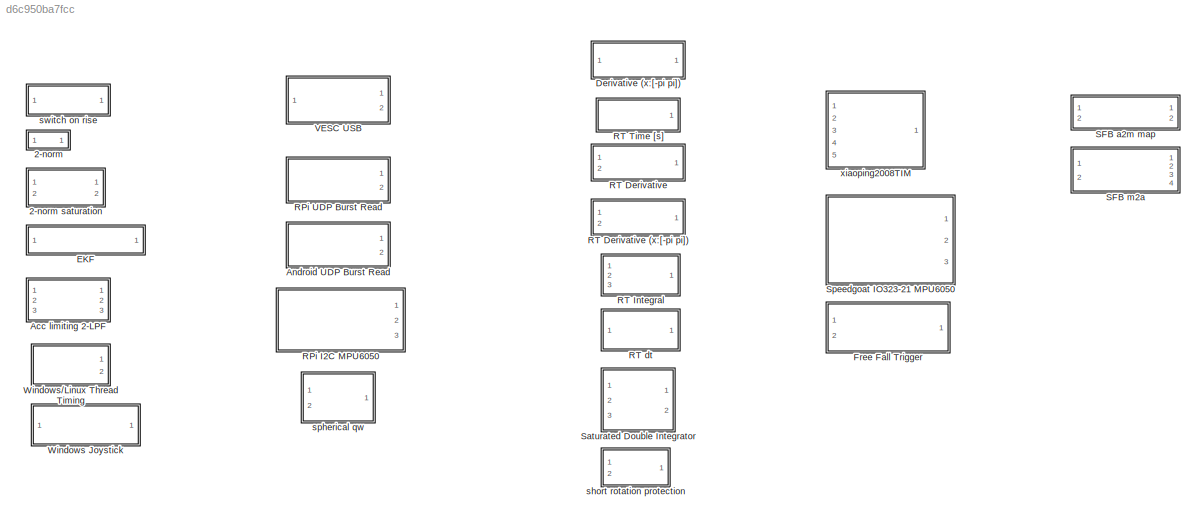
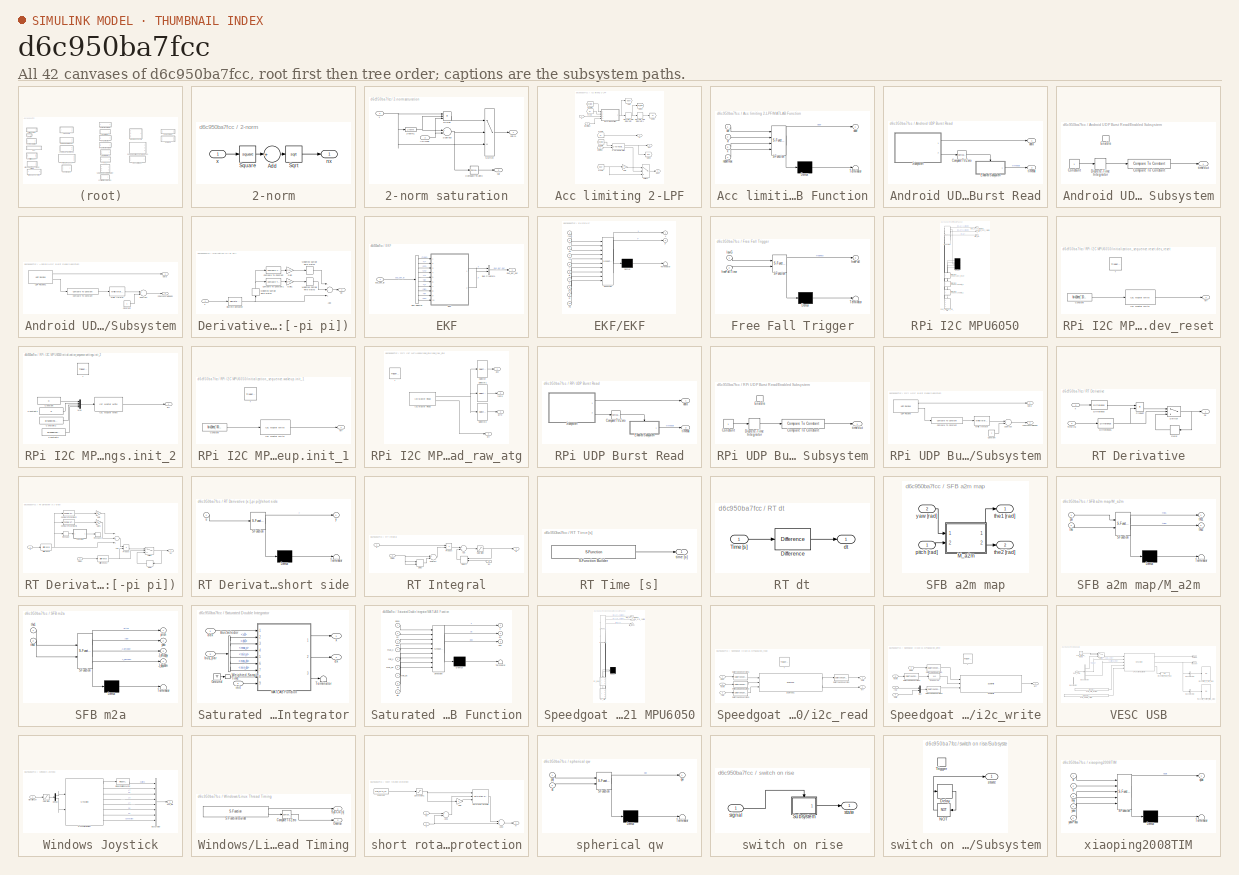
[diagram: thumbnail index - all 42 canvases of the model, root first then tree order]
MODEL slx_d6c950ba7fcc
KIND library
CONFIG AbsTol = auto
CONFIG EnableMultiTasking = off
CONFIG FixedStep = auto
CONFIG MaxStep = auto
CONFIG MinStep = auto
CONFIG RelTol = 1e-3
CONFIG SampleTimeConstraint = Unconstrained
CONFIG Solver = VariableStepAuto
CONFIG SolverName = VariableStepAuto
CONFIG StartTime = 0.0
CONFIG StopTime = 10.0
BLOCK [SubSystem] 2-norm
  Ports = [1, 1]
  RequestExecContextInheritance = off
BLOCK [SubSystem] 2-norm saturation
  Ports = [2, 2]
  RequestExecContextInheritance = off
BLOCK [Reference] 2-norm saturation/2-norm1  REF=$bdroot/2-norm
  Ports = [1, 1]
  SourceBlock = $bdroot/2-norm
  SourceType = Vector 2-norm
BLOCK [Reference] 2-norm saturation/Compare To Zero  REF=simulink/Logic and Bit
Operations/Compare
To Zero
  Ports = [1, 1]
  SourceBlock = simulink/Logic and Bit\nOperations/Compare\nTo Zero
  SourceProductBaseCode = SL
  SourceProductName = Simulink
  SourceType = Compare To Zero
BLOCK [Product] 2-norm saturation/Divide
  InputSameDT = off
  Inputs = */*
  OutDataTypeStr = Inherit: Inherit via internal rule
  Ports = [3, 1]
  RndMeth = Floor
  SaturateOnIntegerOverflow = off
BLOCK [Sum] 2-norm saturation/Subtract
  InputSameDT = off
  Inputs = +-
  OutDataTypeStr = Inherit: Inherit via internal rule
  Ports = [2, 1]
  SaturateOnIntegerOverflow = off
BLOCK [Switch] 2-norm saturation/Switch
  Criteria = u2 > Threshold
  InputSameDT = off
  SaturateOnIntegerOverflow = off
BLOCK [Outport] 2-norm saturation/sat
  IconDisplay = Port number
  Port = 2
BLOCK [Outport] 2-norm saturation/sat(x)
  IconDisplay = Port number
BLOCK [Inport] 2-norm saturation/x
  IconDisplay = Port number
  SignalType = real
  VarSizeSig = No
BLOCK [Inport] 2-norm saturation/||x||max
  IconDisplay = Port number
  Port = 2
  PortDimensions = 1
  SignalType = real
  VarSizeSig = No
BLOCK [Sum] 2-norm/Add
  InputSameDT = off
  Inputs = +
  OutDataTypeStr = Inherit: Inherit via internal rule
  Ports = [1, 1]
  SaturateOnIntegerOverflow = off
BLOCK [Sqrt] 2-norm/Sqrt
BLOCK [Math] 2-norm/Square
  Operator = square
  Ports = [1, 1]
BLOCK [Outport] 2-norm/nx
  IconDisplay = Port number
BLOCK [Inport] 2-norm/x
  IconDisplay = Port number
  SignalType = real
  VarSizeSig = No
BLOCK [SubSystem] Acc limiting 2-LPF
  Ports = [3, 3]
  RequestExecContextInheritance = off
  SystemSampleTime = PAR_SMPLT
  TreatAsAtomicUnit = on
BLOCK [Reference] Acc limiting 2-LPF/2-norm saturation  REF=$bdroot/2-norm saturation
  Ports = [2, 2]
  SourceBlock = $bdroot/2-norm saturation
  SourceType = 2-norm saturation
BLOCK [DiscreteIntegrator] Acc limiting 2-LPF/Discrete-Time Integrator
  ICPrevOutput = DiscIntNeverNeededParam
  ICPrevScaledInput = DiscIntNeverNeededParam
  InitialConditionSetting = Auto
  Ports = [1, 1]
  SampleTime = -1
BLOCK [DiscreteIntegrator] Acc limiting 2-LPF/Discrete-Time Integrator1
  ICPrevOutput = DiscIntNeverNeededParam
  ICPrevScaledInput = DiscIntNeverNeededParam
  InitialConditionSetting = Auto
  Ports = [1, 1]
  SampleTime = -1
BLOCK [From] Acc limiting 2-LPF/From
  GotoTag = xf
BLOCK [From] Acc limiting 2-LPF/From2
  GotoTag = xf
BLOCK [From] Acc limiting 2-LPF/From3
  GotoTag = ddxf
BLOCK [From] Acc limiting 2-LPF/From4
  GotoTag = dxf_raw
BLOCK [From] Acc limiting 2-LPF/From5
  GotoTag = dxf_raw
BLOCK [Gain] Acc limiting 2-LPF/Gain
  Gain = 0
  OutDataTypeStr = Inherit: Inherit via internal rule
  ParamDataTypeStr = Inherit: Inherit via internal rule
  SaturateOnIntegerOverflow = off
BLOCK [Goto] Acc limiting 2-LPF/Goto
  GotoTag = ddxf
BLOCK [Goto] Acc limiting 2-LPF/Goto1
  GotoTag = dxf_raw
BLOCK [Goto] Acc limiting 2-LPF/Goto2
  GotoTag = xf
BLOCK [Goto] Acc limiting 2-LPF/Goto3
  GotoTag = dxf
BLOCK [SubSystem] Acc limiting 2-LPF/MATLAB Function
  ErrorFcn = Stateflow.Translate.translate
  PermitHierarchicalResolution = ExplicitOnly
  Ports = [4, 1]
  RequestExecContextInheritance = off
  SFBlockType = MATLAB Function
BLOCK [Demux] Acc limiting 2-LPF/MATLAB Function/ Demux 
  Outputs = 1
  Ports = [1, 1]
BLOCK [S-Function] Acc limiting 2-LPF/MATLAB Function/ SFunction 
  EnableBusSupport = on
  FunctionName = sf_sfun
  PortCounts = [4 2]
  Ports = [4, 2]
  SFcnIsStateOwnerBlock = off
  SFunctionDeploymentMode = off
  Tag = Stateflow S-Function cm_custom 2
BLOCK [Terminator] Acc limiting 2-LPF/MATLAB Function/ Terminator 
BLOCK [Outport] Acc limiting 2-LPF/MATLAB Function/ddxf
  IconDisplay = Port number
BLOCK [Inport] Acc limiting 2-LPF/MATLAB Function/dxf
  IconDisplay = Port number
BLOCK [Inport] Acc limiting 2-LPF/MATLAB Function/nddxfmax
  IconDisplay = Port number
  Port = 4
BLOCK [Inport] Acc limiting 2-LPF/MATLAB Function/x
  IconDisplay = Port number
  Port = 3
BLOCK [Inport] Acc limiting 2-LPF/MATLAB Function/xf
  IconDisplay = Port number
  Port = 2
BLOCK [Switch] Acc limiting 2-LPF/Switch1
  Criteria = u2 > Threshold
  InputSameDT = off
  SaturateOnIntegerOverflow = off
BLOCK [Outport] Acc limiting 2-LPF/ddxf
  IconDisplay = Port number
  Port = 3
BLOCK [Outport] Acc limiting 2-LPF/dxf
  IconDisplay = Port number
  Port = 2
BLOCK [Inport] Acc limiting 2-LPF/x
  IconDisplay = Port number
BLOCK [Outport] Acc limiting 2-LPF/xf
  IconDisplay = Port number
BLOCK [Inport] Acc limiting 2-LPF/||ddxf||max
  IconDisplay = Port number
  Port = 3
BLOCK [Inport] Acc limiting 2-LPF/||dxf||max
  IconDisplay = Port number
  Port = 2
BLOCK [SubSystem] Android UDP Burst Read
  Ports = [0, 2]
  RequestExecContextInheritance = off
  SystemSampleTime = PAR_SMPLT
  TreatAsAtomicUnit = on
BLOCK [Reference] Android UDP Burst Read/Compare To Zero  REF=simulink/Logic and Bit
Operations/Compare
To Zero
  Ports = [1, 1]
  SourceBlock = simulink/Logic and Bit\nOperations/Compare\nTo Zero
  SourceProductBaseCode = SL
  SourceProductName = Simulink
  SourceType = Compare To Zero
BLOCK [SubSystem] Android UDP Burst Read/Enabled Subsystem
  Ports = [0, 1, 1]
  RequestExecContextInheritance = off
  TreatAsAtomicUnit = on
BLOCK [Reference] Android UDP Burst Read/Enabled Subsystem/Compare To Constant  REF=simulink/Logic and Bit
Operations/Compare
To Constant
  Ports = [1, 1]
  SourceBlock = simulink/Logic and Bit\nOperations/Compare\nTo Constant
  SourceProductBaseCode = SL
  SourceProductName = Simulink
  SourceType = Compare To Constant
BLOCK [Constant] Android UDP Burst Read/Enabled Subsystem/Constant
BLOCK [DiscreteIntegrator] Android UDP Burst Read/Enabled Subsystem/Discrete-Time Integrator
  ICPrevOutput = DiscIntNeverNeededParam
  ICPrevScaledInput = DiscIntNeverNeededParam
  InitialConditionSetting = Auto
  Ports = [1, 1]
  SampleTime = -1
BLOCK [EnablePort] Android UDP Burst Read/Enabled Subsystem/Enable
  Ports = []
  StatesWhenEnabling = reset
BLOCK [Outport] Android UDP Burst Read/Enabled Subsystem/timeout
  IconDisplay = Port number
  InitialOutput = 0
  OutputWhenDisabled = reset
BLOCK [SubSystem] Android UDP Burst Read/Subsystem
  Ports = [0, 2]
  RequestExecContextInheritance = off
BLOCK [Reference] Android UDP Burst Read/Subsystem/Compare To Constant  REF=simulink/Logic and Bit
Operations/Compare
To Constant
  Ports = [1, 1]
  SourceBlock = simulink/Logic and Bit\nOperations/Compare\nTo Constant
  SourceProductBaseCode = SL
  SourceProductName = Simulink
  SourceType = Compare To Constant
BLOCK [Constant] Android UDP Burst Read/Subsystem/Constant
BLOCK [Sum] Android UDP Burst Read/Subsystem/Subtract
  InputSameDT = off
  Inputs = +-
  OutDataTypeStr = Inherit: Inherit via internal rule
  Ports = [2, 1]
  SaturateOnIntegerOverflow = off
BLOCK [Reference] Android UDP Burst Read/Subsystem/UDP Receive1  REF=androidcommunicationlib/UDP Receive
  Ports = [0, 2]
  SourceBlock = androidcommunicationlib/UDP Receive
  SourceProductBaseCode = ANDROID
  SourceProductName = Simulink Support Package for Android Devices
  SourceType = UDP Receive
BLOCK [WhileIterator] Android UDP Burst Read/Subsystem/While Iterator
  MaxIters = PAR_NBURST
  OutputDataType = double
  Ports = [1, 1]
  ShowIterationPort = on
  WhileBlockType = do-while
BLOCK [Outport] Android UDP Burst Read/Subsystem/data
  IconDisplay = Port number
BLOCK [Outport] Android UDP Burst Read/Subsystem/nSuccessfulReads
  IconDisplay = Port number
  Port = 2
BLOCK [Outport] Android UDP Burst Read/data
  IconDisplay = Port number
BLOCK [Outport] Android UDP Burst Read/timeout
  IconDisplay = Port number
  Port = 2
BLOCK [SubSystem] Derivative (x:[-pi pi])
  Ports = [1, 1]
  RequestExecContextInheritance = off
  TreatAsAtomicUnit = on
BLOCK [Sum] Derivative (x:[-pi pi])/Add
  InputSameDT = off
  Inputs = -++
  OutDataTypeStr = Inherit: Inherit via internal rule
  Ports = [3, 1]
  SaturateOnIntegerOverflow = off
BLOCK [Reference] Derivative (x:[-pi pi])/Compare To Constant  REF=simulink/Logic and Bit
Operations/Compare
To Constant
  Ports = [1, 1]
  SourceBlock = simulink/Logic and Bit\nOperations/Compare\nTo Constant
  SourceProductBaseCode = SL
  SourceProductName = Simulink
  SourceType = Compare To Constant
BLOCK [Reference] Derivative (x:[-pi pi])/Compare To Constant1  REF=simulink/Logic and Bit
Operations/Compare
To Constant
  Ports = [1, 1]
  SourceBlock = simulink/Logic and Bit\nOperations/Compare\nTo Constant
  SourceProductBaseCode = SL
  SourceProductName = Simulink
  SourceType = Compare To Constant
BLOCK [Reference] Derivative (x:[-pi pi])/Discrete Derivative  REF=simulink/Discrete/Discrete Derivative
  Ports = [1, 1]
  SourceBlock = simulink/Discrete/Discrete Derivative
  SourceProductBaseCode = SL
  SourceProductName = Simulink
  SourceType = Discrete Derivative
BLOCK [Gain] Derivative (x:[-pi pi])/Gain
  Gain = 2*pi
  OutDataTypeStr = double
  ParamDataTypeStr = Inherit: Inherit via internal rule
  SaturateOnIntegerOverflow = off
BLOCK [Gain] Derivative (x:[-pi pi])/Gain1
  Gain = 2*pi
  OutDataTypeStr = double
  ParamDataTypeStr = Inherit: Inherit via internal rule
  SaturateOnIntegerOverflow = off
BLOCK [SampleTimeMath] Derivative (x:[-pi pi])/Weighted Sample Time Math1
  TsampMathOp = *
BLOCK [SampleTimeMath] Derivative (x:[-pi pi])/Weighted Sample Time Math2
  TsampMathOp = /
BLOCK [SampleTimeMath] Derivative (x:[-pi pi])/Weighted Sample Time Math3
  TsampMathOp = /
BLOCK [Outport] Derivative (x:[-pi pi])/dx
  IconDisplay = Port number
BLOCK [Inport] Derivative (x:[-pi pi])/x
  IconDisplay = Port number
BLOCK [SubSystem] EKF
  Ports = [1, 1]
  RequestExecContextInheritance = off
BLOCK [BusCreator] EKF/Bus Creator1
  DisplayOption = bar
  InheritFromInputs = on
  Inputs = 2
  Ports = [2, 1]
BLOCK [BusSelector] EKF/Bus Selector
  OutputAsBus = off
  OutputSignals = fuse,y,xh,yh,A,B,C,Qo,R,Po
  Ports = [1, 10]
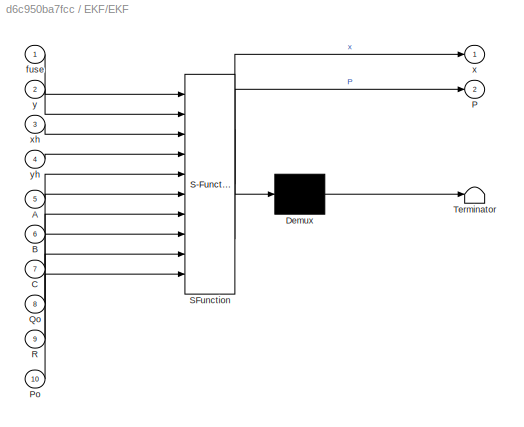
BLOCK [SubSystem] EKF/EKF
  ErrorFcn = Stateflow.Translate.translate
  PermitHierarchicalResolution = ExplicitOnly
  Ports = [10, 2]
  RequestExecContextInheritance = off
  SFBlockType = MATLAB Function
  TreatAsAtomicUnit = on
BLOCK [Demux] EKF/EKF/ Demux 
  Outputs = 1
  Ports = [1, 1]
BLOCK [S-Function] EKF/EKF/ SFunction 
  EnableBusSupport = on
  FunctionName = sf_sfun
  PortCounts = [10 3]
  Ports = [10, 3]
  SFcnIsStateOwnerBlock = off
  SFunctionDeploymentMode = off
  Tag = Stateflow S-Function cm_custom 11
BLOCK [Terminator] EKF/EKF/ Terminator 
BLOCK [Inport] EKF/EKF/A
  IconDisplay = Port number
  Port = 5
BLOCK [Inport] EKF/EKF/B
  IconDisplay = Port number
  Port = 6
BLOCK [Inport] EKF/EKF/C
  IconDisplay = Port number
  Port = 7
BLOCK [Outport] EKF/EKF/P
  IconDisplay = Port number
  Port = 2
BLOCK [Inport] EKF/EKF/Po
  IconDisplay = Port number
  Port = 10
BLOCK [Inport] EKF/EKF/Qo
  IconDisplay = Port number
  Port = 8
BLOCK [Inport] EKF/EKF/R
  IconDisplay = Port number
  Port = 9
BLOCK [Inport] EKF/EKF/fuse
  IconDisplay = Port number
BLOCK [Outport] EKF/EKF/x
  IconDisplay = Port number
BLOCK [Inport] EKF/EKF/xh
  IconDisplay = Port number
  Port = 3
BLOCK [Inport] EKF/EKF/y
  IconDisplay = Port number
  Port = 2
BLOCK [Inport] EKF/EKF/yh
  IconDisplay = Port number
  Port = 4
BLOCK [Inport] EKF/bus_ekf_in
  IconDisplay = Port number
BLOCK [Outport] EKF/bus_ekf_out
  IconDisplay = Port number
BLOCK [SubSystem] Free Fall Trigger
  ErrorFcn = Stateflow.Translate.translate
  PermitHierarchicalResolution = ExplicitOnly
  Ports = [2, 1]
  RequestExecContextInheritance = off
  SFBlockType = Chart
  TreatAsAtomicUnit = on
BLOCK [Demux] Free Fall Trigger/ Demux 
  Outputs = 1
  Ports = [1, 1]
BLOCK [S-Function] Free Fall Trigger/ SFunction 
  EnableBusSupport = on
  FunctionName = sf_sfun
  PortCounts = [2 2]
  Ports = [2, 2]
  SFcnIsStateOwnerBlock = off
  SFunctionDeploymentMode = off
  Tag = Stateflow S-Function cm_custom 10
BLOCK [Terminator] Free Fall Trigger/ Terminator 
BLOCK [Outport] Free Fall Trigger/freeFall
  IconDisplay = Port number
BLOCK [Inport] Free Fall Trigger/freeFallTime
  IconDisplay = Port number
  Port = 2
BLOCK [Inport] Free Fall Trigger/lowG
  IconDisplay = Port number
BLOCK [SubSystem] RPi I2C MPU6050
  ErrorFcn = Stateflow.Translate.translate
  PermitHierarchicalResolution = ExplicitOnly
  Ports = [0, 3]
  RequestExecContextInheritance = off
  SFBlockType = Chart
  SystemSampleTime = PAR_SMPLT
  TreatAsAtomicUnit = on
BLOCK [Demux] RPi I2C MPU6050/ Demux 
  Ports = [1, 4]
BLOCK [S-Function] RPi I2C MPU6050/ SFunction 
  EnableBusSupport = on
  FunctionName = sf_sfun
  Parameters = PAR_OFFSET_ACC,PAR_OFFSET_GYRO,PAR_SENS_ACC,PAR_SENS_GYRO
  PortCounts = [7 4]
  Ports = [7, 4]
  SFcnIsStateOwnerBlock = off
  SFunctionDeploymentMode = off
  Tag = Stateflow S-Function cm_custom 6
BLOCK [Outport] RPi I2C MPU6050/imu_rdy
  IconDisplay = Port number
  Port = 3
BLOCK [SubSystem] RPi I2C MPU6050/initialization_sequence.reset.dev_reset
  Ports = [0, 1, 0, 1]
  PreDeleteFcn = Stateflow.SLINSF.SimulinkMan.removePreDeleteFcn
  RequestExecContextInheritance = off
  UndoDeleteFcn = Stateflow.SLINSF.SimulinkMan.restorePreDeleteFcn
BLOCK [Constant] RPi I2C MPU6050/initialization_sequence.reset.dev_reset/Constant
  OutDataTypeStr = uint8
  Value = bin2dec('10000000')
BLOCK [Reference] RPi I2C MPU6050/initialization_sequence.reset.dev_reset/I2C Master Write  REF=raspberrypilib/I2C Master Write
  Ports = [1, 1]
  SourceBlock = raspberrypilib/I2C Master Write
  SourceProductBaseCode = RASPPI
  SourceProductName = Simulink Support Package for Raspberry Pi Hardware
  SourceType = codertarget.raspi.internal.I2CMasterWrite
BLOCK [Outport] RPi I2C MPU6050/initialization_sequence.reset.dev_reset/err
  IconDisplay = Port number
BLOCK [TriggerPort] RPi I2C MPU6050/initialization_sequence.reset.dev_reset/f
  CopyFcn = Stateflow.SLINSF.SimulinkMan.removeBlockPreDeleteFcn
  Ports = []
  PreDeleteFcn = Stateflow.SLINSF.SimulinkMan.unsafePredeleteFcn
  StatesWhenEnabling = held
  TriggerType = function-call
  VariantControl = (inherit)
BLOCK [SubSystem] RPi I2C MPU6050/initialization_sequence.settings.init_2
  Ports = [0, 1, 0, 1]
  PreDeleteFcn = Stateflow.SLINSF.SimulinkMan.removePreDeleteFcn
  RequestExecContextInheritance = off
  UndoDeleteFcn = Stateflow.SLINSF.SimulinkMan.restorePreDeleteFcn
BLOCK [Constant] RPi I2C MPU6050/initialization_sequence.settings.init_2/Constant
  OutDataTypeStr = uint8
  Value = 0
BLOCK [Constant] RPi I2C MPU6050/initialization_sequence.settings.init_2/Constant1
  OutDataTypeStr = uint8
  Value = 0
BLOCK [Constant] RPi I2C MPU6050/initialization_sequence.settings.init_2/Constant2
  OutDataTypeStr = uint8
  Value = bin2dec('00011000')
BLOCK [Constant] RPi I2C MPU6050/initialization_sequence.settings.init_2/Constant3
  OutDataTypeStr = uint8
  Value = bin2dec('00001000')
BLOCK [Reference] RPi I2C MPU6050/initialization_sequence.settings.init_2/I2C Master Write  REF=raspberrypilib/I2C Master Write
  Ports = [1, 1]
  SourceBlock = raspberrypilib/I2C Master Write
  SourceProductBaseCode = RASPPI
  SourceProductName = Simulink Support Package for Raspberry Pi Hardware
  SourceType = codertarget.raspi.internal.I2CMasterWrite
BLOCK [Mux] RPi I2C MPU6050/initialization_sequence.settings.init_2/Mux
  DisplayOption = bar
  Ports = [4, 1]
BLOCK [Outport] RPi I2C MPU6050/initialization_sequence.settings.init_2/err
  IconDisplay = Port number
BLOCK [TriggerPort] RPi I2C MPU6050/initialization_sequence.settings.init_2/f
  CopyFcn = Stateflow.SLINSF.SimulinkMan.removeBlockPreDeleteFcn
  Ports = []
  PreDeleteFcn = Stateflow.SLINSF.SimulinkMan.unsafePredeleteFcn
  StatesWhenEnabling = held
  TriggerType = function-call
  VariantControl = (inherit)
BLOCK [SubSystem] RPi I2C MPU6050/initialization_sequence.wakeup.init_1
  Ports = [0, 1, 0, 1]
  PreDeleteFcn = Stateflow.SLINSF.SimulinkMan.removePreDeleteFcn
  RequestExecContextInheritance = off
  UndoDeleteFcn = Stateflow.SLINSF.SimulinkMan.restorePreDeleteFcn
BLOCK [Constant] RPi I2C MPU6050/initialization_sequence.wakeup.init_1/Constant
  OutDataTypeStr = uint8
  Value = bin2dec('00000001')
BLOCK [Reference] RPi I2C MPU6050/initialization_sequence.wakeup.init_1/I2C Master Write  REF=raspberrypilib/I2C Master Write
  Ports = [1, 1]
  SourceBlock = raspberrypilib/I2C Master Write
  SourceProductBaseCode = RASPPI
  SourceProductName = Simulink Support Package for Raspberry Pi Hardware
  SourceType = codertarget.raspi.internal.I2CMasterWrite
BLOCK [Outport] RPi I2C MPU6050/initialization_sequence.wakeup.init_1/err
  IconDisplay = Port number
BLOCK [TriggerPort] RPi I2C MPU6050/initialization_sequence.wakeup.init_1/f
  CopyFcn = Stateflow.SLINSF.SimulinkMan.removeBlockPreDeleteFcn
  Ports = []
  PreDeleteFcn = Stateflow.SLINSF.SimulinkMan.unsafePredeleteFcn
  StatesWhenEnabling = held
  TriggerType = function-call
  VariantControl = (inherit)
BLOCK [Outport] RPi I2C MPU6050/raw_acc_calibrated
  IconDisplay = Port number
BLOCK [Outport] RPi I2C MPU6050/raw_gyro_calibrated
  IconDisplay = Port number
  Port = 2
BLOCK [SubSystem] RPi I2C MPU6050/read_atg.read_raw_atg
  Ports = [0, 4, 0, 1]
  PreDeleteFcn = Stateflow.SLINSF.SimulinkMan.removePreDeleteFcn
  RequestExecContextInheritance = off
  UndoDeleteFcn = Stateflow.SLINSF.SimulinkMan.restorePreDeleteFcn
BLOCK [Reference] RPi I2C MPU6050/read_atg.read_raw_atg/I2C Master Read  REF=raspberrypilib/I2C Master Read
  Ports = [0, 2]
  SourceBlock = raspberrypilib/I2C Master Read
  SourceProductBaseCode = RASPPI
  SourceProductName = Simulink Support Package for Raspberry Pi Hardware
  SourceType = codertarget.raspi.internal.I2CMasterRead
BLOCK [Selector] RPi I2C MPU6050/read_atg.read_raw_atg/Selector
  IndexOptions = Index vector (dialog)
  Indices = [1 2 3]
  InputPortWidth = 7
  OutputSizes = 1
  Ports = [1, 1]
BLOCK [Selector] RPi I2C MPU6050/read_atg.read_raw_atg/Selector1
  IndexOptions = Index vector (dialog)
  Indices = 4
  InputPortWidth = 7
  OutputSizes = 1
  Ports = [1, 1]
BLOCK [Selector] RPi I2C MPU6050/read_atg.read_raw_atg/Selector2
  IndexOptions = Index vector (dialog)
  Indices = [5 6 7]
  InputPortWidth = 7
  OutputSizes = 1
  Ports = [1, 1]
BLOCK [Outport] RPi I2C MPU6050/read_atg.read_raw_atg/acc
  IconDisplay = Port number
BLOCK [Outport] RPi I2C MPU6050/read_atg.read_raw_atg/err
  IconDisplay = Port number
  OutDataTypeStr = uint8
  Port = 4
BLOCK [TriggerPort] RPi I2C MPU6050/read_atg.read_raw_atg/f
  CopyFcn = Stateflow.SLINSF.SimulinkMan.removeBlockPreDeleteFcn
  Ports = []
  PreDeleteFcn = Stateflow.SLINSF.SimulinkMan.unsafePredeleteFcn
  StatesWhenEnabling = held
  TriggerType = function-call
  VariantControl = (inherit)
BLOCK [Outport] RPi I2C MPU6050/read_atg.read_raw_atg/gyro
  IconDisplay = Port number
  Port = 3
BLOCK [Outport] RPi I2C MPU6050/read_atg.read_raw_atg/temp
  IconDisplay = Port number
  Port = 2
BLOCK [SubSystem] RPi UDP Burst Read
  Ports = [0, 2]
  RequestExecContextInheritance = off
  SystemSampleTime = PAR_SMPLT
  TreatAsAtomicUnit = on
BLOCK [Reference] RPi UDP Burst Read/Compare To Zero  REF=simulink/Logic and Bit
Operations/Compare
To Zero
  Ports = [1, 1]
  SourceBlock = simulink/Logic and Bit\nOperations/Compare\nTo Zero
  SourceProductBaseCode = SL
  SourceProductName = Simulink
  SourceType = Compare To Zero
BLOCK [SubSystem] RPi UDP Burst Read/Enabled Subsystem
  Ports = [0, 1, 1]
  RequestExecContextInheritance = off
  TreatAsAtomicUnit = on
BLOCK [Reference] RPi UDP Burst Read/Enabled Subsystem/Compare To Constant  REF=simulink/Logic and Bit
Operations/Compare
To Constant
  Ports = [1, 1]
  SourceBlock = simulink/Logic and Bit\nOperations/Compare\nTo Constant
  SourceProductBaseCode = SL
  SourceProductName = Simulink
  SourceType = Compare To Constant
BLOCK [Constant] RPi UDP Burst Read/Enabled Subsystem/Constant
BLOCK [DiscreteIntegrator] RPi UDP Burst Read/Enabled Subsystem/Discrete-Time Integrator
  ICPrevOutput = DiscIntNeverNeededParam
  ICPrevScaledInput = DiscIntNeverNeededParam
  InitialConditionSetting = Auto
  Ports = [1, 1]
  SampleTime = -1
BLOCK [EnablePort] RPi UDP Burst Read/Enabled Subsystem/Enable
  Ports = []
  StatesWhenEnabling = reset
BLOCK [Outport] RPi UDP Burst Read/Enabled Subsystem/timeout
  IconDisplay = Port number
  InitialOutput = 0
  OutputWhenDisabled = reset
BLOCK [SubSystem] RPi UDP Burst Read/Subsystem
  Ports = [0, 2]
  RequestExecContextInheritance = off
BLOCK [Reference] RPi UDP Burst Read/Subsystem/Compare To Constant  REF=simulink/Logic and Bit
Operations/Compare
To Constant
  Ports = [1, 1]
  SourceBlock = simulink/Logic and Bit\nOperations/Compare\nTo Constant
  SourceProductBaseCode = SL
  SourceProductName = Simulink
  SourceType = Compare To Constant
BLOCK [Constant] RPi UDP Burst Read/Subsystem/Constant
BLOCK [Sum] RPi UDP Burst Read/Subsystem/Subtract
  InputSameDT = off
  Inputs = +-
  OutDataTypeStr = Inherit: Inherit via internal rule
  Ports = [2, 1]
  SaturateOnIntegerOverflow = off
BLOCK [Reference] RPi UDP Burst Read/Subsystem/UDP Receive  REF=embdlinuxlib/UDP Receive
  Ports = [0, 2]
  SourceBlock = embdlinuxlib/UDP Receive
  SourceProductBaseCode = RASPPI
  SourceProductName = Simulink Support Package for Raspberry Pi Hardware
  SourceType = UDP Receive
BLOCK [WhileIterator] RPi UDP Burst Read/Subsystem/While Iterator
  MaxIters = PAR_NBURST
  OutputDataType = double
  Ports = [1, 1]
  ShowIterationPort = on
  WhileBlockType = do-while
BLOCK [Outport] RPi UDP Burst Read/Subsystem/data
  IconDisplay = Port number
BLOCK [Outport] RPi UDP Burst Read/Subsystem/nSuccessfulReads
  IconDisplay = Port number
  Port = 2
BLOCK [Outport] RPi UDP Burst Read/data
  IconDisplay = Port number
BLOCK [Outport] RPi UDP Burst Read/timeout
  IconDisplay = Port number
  Port = 2
BLOCK [SubSystem] RT Derivative
  Ports = [2, 1]
  RequestExecContextInheritance = off
  TreatAsAtomicUnit = on
BLOCK [SubSystem] RT Derivative (x:[-pi pi])
  Ports = [2, 1]
  RequestExecContextInheritance = off
  TreatAsAtomicUnit = on
BLOCK [Sum] RT Derivative (x:[-pi pi])/Add
  InputSameDT = off
  Inputs = -++
  OutDataTypeStr = Inherit: Inherit via internal rule
  Ports = [3, 1]
  SaturateOnIntegerOverflow = off
BLOCK [Reference] RT Derivative (x:[-pi pi])/Compare To Constant  REF=simulink/Logic and Bit
Operations/Compare
To Constant
  Ports = [1, 1]
  SourceBlock = simulink/Logic and Bit\nOperations/Compare\nTo Constant
  SourceProductBaseCode = SL
  SourceProductName = Simulink
  SourceType = Compare To Constant
BLOCK [Reference] RT Derivative (x:[-pi pi])/Compare To Constant1  REF=simulink/Logic and Bit
Operations/Compare
To Constant
  Ports = [1, 1]
  SourceBlock = simulink/Logic and Bit\nOperations/Compare\nTo Constant
  SourceProductBaseCode = SL
  SourceProductName = Simulink
  SourceType = Compare To Constant
BLOCK [Delay] RT Derivative (x:[-pi pi])/Delay
  DelayLength = 1
  InputPortMap = u0
  Ports = [1, 1]
BLOCK [Reference] RT Derivative (x:[-pi pi])/Difference  REF=simulink/Discrete/Difference
  Ports = [1, 1]
  SourceBlock = simulink/Discrete/Difference
  SourceProductBaseCode = SL
  SourceProductName = Simulink
  SourceType = Difference
BLOCK [Reference] RT Derivative (x:[-pi pi])/Difference1  REF=simulink/Discrete/Difference
  Ports = [1, 1]
  SourceBlock = simulink/Discrete/Difference
  SourceProductBaseCode = SL
  SourceProductName = Simulink
  SourceType = Difference
BLOCK [Gain] RT Derivative (x:[-pi pi])/Gain
  Gain = 2*pi
  OutDataTypeStr = double
  ParamDataTypeStr = Inherit: Inherit via internal rule
  SaturateOnIntegerOverflow = off
BLOCK [Gain] RT Derivative (x:[-pi pi])/Gain1
  Gain = 2*pi
  OutDataTypeStr = double
  ParamDataTypeStr = Inherit: Inherit via internal rule
  SaturateOnIntegerOverflow = off
BLOCK [Product] RT Derivative (x:[-pi pi])/Product
  InputSameDT = off
  Inputs = */
  OutDataTypeStr = Inherit: Inherit via internal rule
  Ports = [2, 1]
  RndMeth = Floor
  SaturateOnIntegerOverflow = off
BLOCK [Reshape] RT Derivative (x:[-pi pi])/Reshape
  Commented = on
  Ports = [1, 1]
BLOCK [Reshape] RT Derivative (x:[-pi pi])/Reshape1
  Commented = on
  OutputDimensionality = Derive from reference input port
  Ports = [2, 1]
BLOCK [Switch] RT Derivative (x:[-pi pi])/Switch
  Criteria = u2 > Threshold
  InputSameDT = off
  SaturateOnIntegerOverflow = off
BLOCK [Inport] RT Derivative (x:[-pi pi])/Time [s]
  IconDisplay = Port number
  Port = 2
BLOCK [Outport] RT Derivative (x:[-pi pi])/dx
  IconDisplay = Port number
BLOCK [SubSystem] RT Derivative (x:[-pi pi])/short side
  Commented = on
  ErrorFcn = Stateflow.Translate.translate
  PermitHierarchicalResolution = ExplicitOnly
  Ports = [1, 1]
  RequestExecContextInheritance = off
  SFBlockType = MATLAB Function
  TreatAsAtomicUnit = on
BLOCK [Demux] RT Derivative (x:[-pi pi])/short side/ Demux 
  Outputs = 1
  Ports = [1, 1]
BLOCK [S-Function] RT Derivative (x:[-pi pi])/short side/ SFunction 
  EnableBusSupport = on
  FunctionName = sf_sfun
  PortCounts = [1 2]
  Ports = [1, 2]
  SFcnIsStateOwnerBlock = off
  SFunctionDeploymentMode = off
  Tag = Stateflow S-Function cm_custom 8
BLOCK [Terminator] RT Derivative (x:[-pi pi])/short side/ Terminator 
BLOCK [Inport] RT Derivative (x:[-pi pi])/short side/u
  IconDisplay = Port number
BLOCK [Outport] RT Derivative (x:[-pi pi])/short side/y
  IconDisplay = Port number
BLOCK [Inport] RT Derivative (x:[-pi pi])/x
  IconDisplay = Port number
BLOCK [Delay] RT Derivative/Delay
  DelayLength = 1
  InputPortMap = u0
  Ports = [1, 1]
BLOCK [Reference] RT Derivative/Difference  REF=simulink/Discrete/Difference
  Ports = [1, 1]
  SourceBlock = simulink/Discrete/Difference
  SourceProductBaseCode = SL
  SourceProductName = Simulink
  SourceType = Difference
BLOCK [Reference] RT Derivative/Difference1  REF=simulink/Discrete/Difference
  Ports = [1, 1]
  SourceBlock = simulink/Discrete/Difference
  SourceProductBaseCode = SL
  SourceProductName = Simulink
  SourceType = Difference
BLOCK [Product] RT Derivative/Product
  InputSameDT = off
  Inputs = */
  OutDataTypeStr = Inherit: Inherit via internal rule
  Ports = [2, 1]
  RndMeth = Floor
  SaturateOnIntegerOverflow = off
BLOCK [Switch] RT Derivative/Switch
  Criteria = u2 > Threshold
  InputSameDT = off
  SaturateOnIntegerOverflow = off
BLOCK [Inport] RT Derivative/Time [s]
  IconDisplay = Port number
  Port = 2
BLOCK [Outport] RT Derivative/dx
  IconDisplay = Port number
BLOCK [Inport] RT Derivative/x
  IconDisplay = Port number
BLOCK [SubSystem] RT Integral
  Ports = [3, 1]
  RequestExecContextInheritance = off
  TreatAsAtomicUnit = on
BLOCK [Sum] RT Integral/Add
  InputSameDT = off
  OutDataTypeStr = Inherit: Inherit via internal rule
  Ports = [2, 1]
  SaturateOnIntegerOverflow = off
BLOCK [Delay] RT Integral/Delay
  DelayLength = 1
  InitialConditionSource = Input port
  InputPortMap = u0,p4
  Ports = [2, 1]
BLOCK [Delay] RT Integral/Delay2
  DelayLength = 1
  InitialConditionSource = Input port
  InputPortMap = u0,p4
  Ports = [2, 1]
BLOCK [Product] RT Integral/Product
  InputSameDT = off
  OutDataTypeStr = Inherit: Inherit via internal rule
  Ports = [2, 1]
  RndMeth = Floor
  SaturateOnIntegerOverflow = off
BLOCK [Saturate] RT Integral/Saturation
  InputPortMap = u0
  LowerLimit = PAR_SAT_DOWN
  Ports = [1, 1]
  UpperLimit = PAR_SAT_UP
BLOCK [Sum] RT Integral/Subtract
  InputSameDT = off
  Inputs = +-
  OutDataTypeStr = Inherit: Inherit via internal rule
  Ports = [2, 1]
  SaturateOnIntegerOverflow = off
BLOCK [Inport] RT Integral/Time [s]
  IconDisplay = Port number
  Port = 2
BLOCK [Outport] RT Integral/ix
  IconDisplay = Port number
BLOCK [Inport] RT Integral/ix0
  IconDisplay = Port number
  Port = 3
BLOCK [Inport] RT Integral/x
  IconDisplay = Port number
BLOCK [SubSystem] RT Time [s]
  Ports = [0, 1]
  RequestExecContextInheritance = off
BLOCK [S-Function] RT Time [s]/S-Function Builder
  CopyFcn = set_param(gcbh,'LinkStatus','none')
  EnableBusSupport = off
  FunctionName = sf_chrono_getCpuTime_secs
  InitFcn = try, set_param(gcb,'FunctionName','sf_chrono_getCpuTime_secs'), end
  OpenFcn = sfunctionwizard(gcbh)
  Ports = [0, 1]
  PreSaveFcn = try, set_param(gcb,'FunctionName','sf_chrono_getCpuTime_secs'), end
  SFcnIsStateOwnerBlock = off
  SFunctionDeploymentMode = off
  SFunctionModules = sf_chrono_getCpuTime_secs_wrapper
BLOCK [Outport] RT Time [s]/time [s]
  IconDisplay = Port number
BLOCK [SubSystem] RT dt
  Ports = [1, 1]
  RequestExecContextInheritance = off
  TreatAsAtomicUnit = on
BLOCK [Reference] RT dt/Difference  REF=simulink/Discrete/Difference
  Ports = [1, 1]
  SourceBlock = simulink/Discrete/Difference
  SourceProductBaseCode = SL
  SourceProductName = Simulink
  SourceType = Difference
BLOCK [Inport] RT dt/Time [s]
  IconDisplay = Port number
BLOCK [Outport] RT dt/dt
  IconDisplay = Port number
BLOCK [SubSystem] SFB a2m map
  Ports = [2, 2]
  RequestExecContextInheritance = off
BLOCK [SubSystem] SFB a2m map/M_a2m
  ErrorFcn = Stateflow.Translate.translate
  PermitHierarchicalResolution = ExplicitOnly
  Ports = [2, 2]
  RequestExecContextInheritance = off
  SFBlockType = MATLAB Function
  TreatAsAtomicUnit = on
BLOCK [Demux] SFB a2m map/M_a2m/ Demux 
  Outputs = 1
  Ports = [1, 1]
BLOCK [S-Function] SFB a2m map/M_a2m/ SFunction 
  EnableBusSupport = off
  FunctionName = sf_sfun
  Parameters = par_pitchMax,par_r,par_w,par_yawMax
  PortCounts = [2 3]
  Ports = [2, 3]
  SFcnIsStateOwnerBlock = off
  SFunctionDeploymentMode = off
  Tag = Stateflow S-Function cm_custom 4
BLOCK [Terminator] SFB a2m map/M_a2m/ Terminator 
BLOCK [Inport] SFB a2m map/M_a2m/psi
  IconDisplay = Port number
BLOCK [Inport] SFB a2m map/M_a2m/the
  IconDisplay = Port number
  Port = 2
BLOCK [Outport] SFB a2m map/M_a2m/the1
  IconDisplay = Port number
BLOCK [Outport] SFB a2m map/M_a2m/the2
  IconDisplay = Port number
  Port = 2
BLOCK [Inport] SFB a2m map/pitch [rad]
  IconDisplay = Port number
BLOCK [Outport] SFB a2m map/the1 [rad]
  IconDisplay = Port number
BLOCK [Outport] SFB a2m map/the2 [rad]
  IconDisplay = Port number
  Port = 2
BLOCK [Inport] SFB a2m map/yaw [rad]
  IconDisplay = Port number
  Port = 2
BLOCK [SubSystem] SFB m2a
  ErrorFcn = Stateflow.Translate.translate
  PermitHierarchicalResolution = ExplicitOnly
  Ports = [2, 4]
  RequestExecContextInheritance = off
  SFBlockType = MATLAB Function
  TreatAsAtomicUnit = on
BLOCK [Demux] SFB m2a/ Demux 
  Outputs = 1
  Ports = [1, 1]
BLOCK [S-Function] SFB m2a/ SFunction 
  EnableBusSupport = on
  FunctionName = sf_sfun
  PortCounts = [2 5]
  Ports = [2, 5]
  SFcnIsStateOwnerBlock = off
  SFunctionDeploymentMode = off
  Tag = Stateflow S-Function cm_custom 12
BLOCK [Terminator] SFB m2a/ Terminator 
BLOCK [Outport] SFB m2a/J_dm2dpy
  IconDisplay = Port number
  Port = 3
BLOCK [Outport] SFB m2a/J_dpy2dm
  IconDisplay = Port number
  Port = 4
BLOCK [Outport] SFB m2a/pitch
  IconDisplay = Port number
BLOCK [Inport] SFB m2a/the1
  IconDisplay = Port number
BLOCK [Inport] SFB m2a/the2
  IconDisplay = Port number
  Port = 2
BLOCK [Outport] SFB m2a/yaw
  IconDisplay = Port number
  Port = 2
BLOCK [SubSystem] Saturated Double Integrator
  Ports = [3, 2]
  RequestExecContextInheritance = off
BLOCK [BusSelector] Saturated Double Integrator/Bus Selector
  OutputAsBus = off
  OutputSignals = x0,dx0,max_x,min_x,max_dx,min_dx
  Ports = [1, 6]
BLOCK [Ground] Saturated Double Integrator/Ground
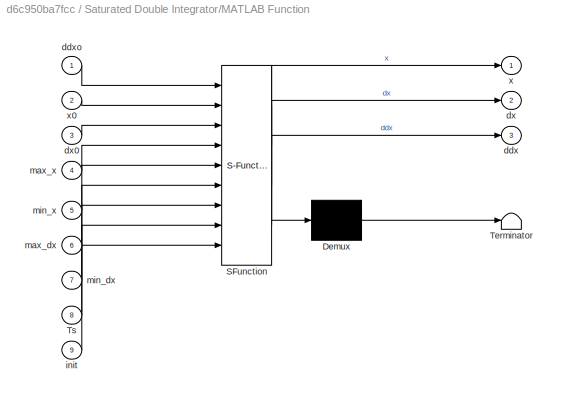
BLOCK [SubSystem] Saturated Double Integrator/MATLAB Function
  ErrorFcn = Stateflow.Translate.translate
  PermitHierarchicalResolution = ExplicitOnly
  Ports = [9, 3]
  RequestExecContextInheritance = off
  SFBlockType = MATLAB Function
  TreatAsAtomicUnit = on
BLOCK [Demux] Saturated Double Integrator/MATLAB Function/ Demux 
  Outputs = 1
  Ports = [1, 1]
BLOCK [S-Function] Saturated Double Integrator/MATLAB Function/ SFunction 
  EnableBusSupport = on
  FunctionName = sf_sfun
  PortCounts = [9 4]
  Ports = [9, 4]
  SFcnIsStateOwnerBlock = off
  SFunctionDeploymentMode = off
  Tag = Stateflow S-Function cm_custom 9
BLOCK [Terminator] Saturated Double Integrator/MATLAB Function/ Terminator 
BLOCK [Inport] Saturated Double Integrator/MATLAB Function/Ts
  IconDisplay = Port number
  Port = 8
BLOCK [Outport] Saturated Double Integrator/MATLAB Function/ddx
  IconDisplay = Port number
  Port = 3
BLOCK [Inport] Saturated Double Integrator/MATLAB Function/ddxo
  IconDisplay = Port number
BLOCK [Outport] Saturated Double Integrator/MATLAB Function/dx
  IconDisplay = Port number
  Port = 2
BLOCK [Inport] Saturated Double Integrator/MATLAB Function/dx0
  IconDisplay = Port number
  Port = 3
BLOCK [Inport] Saturated Double Integrator/MATLAB Function/init
  IconDisplay = Port number
  Port = 9
BLOCK [Inport] Saturated Double Integrator/MATLAB Function/max_dx
  IconDisplay = Port number
  Port = 6
BLOCK [Inport] Saturated Double Integrator/MATLAB Function/max_x
  IconDisplay = Port number
  Port = 4
BLOCK [Inport] Saturated Double Integrator/MATLAB Function/min_dx
  IconDisplay = Port number
  Port = 7
BLOCK [Inport] Saturated Double Integrator/MATLAB Function/min_x
  IconDisplay = Port number
  Port = 5
BLOCK [Outport] Saturated Double Integrator/MATLAB Function/x
  IconDisplay = Port number
BLOCK [Inport] Saturated Double Integrator/MATLAB Function/x0
  IconDisplay = Port number
  Port = 2
BLOCK [Terminator] Saturated Double Integrator/Terminator
BLOCK [SampleTimeMath] Saturated Double Integrator/Weighted Sample Time
  TsampMathOp = Ts Only
BLOCK [Inport] Saturated Double Integrator/bus_par
  IconDisplay = Port number
  Port = 3
BLOCK [Inport] Saturated Double Integrator/ddx
  IconDisplay = Port number
BLOCK [Outport] Saturated Double Integrator/dx
  IconDisplay = Port number
  Port = 2
BLOCK [Inport] Saturated Double Integrator/init
  IconDisplay = Port number
  Port = 2
BLOCK [Outport] Saturated Double Integrator/x
  IconDisplay = Port number
BLOCK [SubSystem] Speedgoat IO323-21 MPU6050
  ErrorFcn = Stateflow.Translate.translate
  PermitHierarchicalResolution = ExplicitOnly
  Ports = [0, 3]
  RequestExecContextInheritance = off
  SFBlockType = Chart
  SystemSampleTime = 0.001
  TreatAsAtomicUnit = on
BLOCK [Demux] Speedgoat IO323-21 MPU6050/ Demux 
  Outputs = 2
  Ports = [1, 2]
BLOCK [S-Function] Speedgoat IO323-21 MPU6050/ SFunction 
  EnableBusSupport = on
  FunctionName = sf_sfun
  Parameters = PAR_OFFSET_ACC,PAR_OFFSET_GYRO,PAR_SENS_ACC,PAR_SENS_GYRO
  PortCounts = [3 11]
  Ports = [3, 11]
  SFcnIsStateOwnerBlock = off
  SFunctionDeploymentMode = off
  Tag = Stateflow S-Function cm_custom 3
BLOCK [Outport] Speedgoat IO323-21 MPU6050/filter_reset
  IconDisplay = Port number
  Port = 3
BLOCK [SubSystem] Speedgoat IO323-21 MPU6050/i2c_read
  Ports = [3, 2, 0, 1]
  PreDeleteFcn = Stateflow.SLINSF.SimulinkMan.removePreDeleteFcn
  RequestExecContextInheritance = off
  UndoDeleteFcn = Stateflow.SLINSF.SimulinkMan.restorePreDeleteFcn
BLOCK [DataTypeConversion] Speedgoat IO323-21 MPU6050/i2c_read/Data Type Conversion
  OutDataTypeStr = uint8
  RndMeth = Floor
  SaturateOnIntegerOverflow = off
BLOCK [DataTypeConversion] Speedgoat IO323-21 MPU6050/i2c_read/Data Type Conversion1
  OutDataTypeStr = double
  RndMeth = Floor
  SaturateOnIntegerOverflow = off
BLOCK [DataTypeConversion] Speedgoat IO323-21 MPU6050/i2c_read/Data Type Conversion2
  OutDataTypeStr = double
  RndMeth = Floor
  SaturateOnIntegerOverflow = off
BLOCK [DataTypeConversion] Speedgoat IO323-21 MPU6050/i2c_read/Data Type Conversion3
  OutDataTypeStr = double
  RndMeth = Floor
  SaturateOnIntegerOverflow = off
BLOCK [Reference] Speedgoat IO323-21 MPU6050/i2c_read/I2CM read1  REF=speedgoatlib_fpga/I2C/I2CM read
  Ports = [3, 2]
  SourceBlock = speedgoatlib_fpga/I2C/I2CM read
  SourceProductName = Simulink Real-Time: Speedgoat I/O Driver Library
  SourceType = i2cmread_fpga_a1
BLOCK [Inport] Speedgoat IO323-21 MPU6050/i2c_read/addr
  IconDisplay = Port number
  OutDataTypeStr = uint8
  PortDimensions = 1
BLOCK [Outport] Speedgoat IO323-21 MPU6050/i2c_read/data
  IconDisplay = Port number
BLOCK [Outport] Speedgoat IO323-21 MPU6050/i2c_read/err
  IconDisplay = Port number
  OutDataTypeStr = boolean
  Port = 2
BLOCK [TriggerPort] Speedgoat IO323-21 MPU6050/i2c_read/f
  CopyFcn = Stateflow.SLINSF.SimulinkMan.removeBlockPreDeleteFcn
  Ports = []
  PreDeleteFcn = Stateflow.SLINSF.SimulinkMan.unsafePredeleteFcn
  StatesWhenEnabling = held
  TriggerType = function-call
  VariantControl = (inherit)
BLOCK [Inport] Speedgoat IO323-21 MPU6050/i2c_read/nbyte
  IconDisplay = Port number
  OutDataTypeStr = uint8
  Port = 2
  PortDimensions = 1
BLOCK [Inport] Speedgoat IO323-21 MPU6050/i2c_read/reg
  IconDisplay = Port number
  OutDataTypeStr = uint8
  Port = 3
  PortDimensions = 1
BLOCK [SubSystem] Speedgoat IO323-21 MPU6050/i2c_write
  Ports = [4, 1, 0, 1]
  PreDeleteFcn = Stateflow.SLINSF.SimulinkMan.removePreDeleteFcn
  RequestExecContextInheritance = off
  UndoDeleteFcn = Stateflow.SLINSF.SimulinkMan.restorePreDeleteFcn
BLOCK [DataTypeConversion] Speedgoat IO323-21 MPU6050/i2c_write/Data Type Conversion
  OutDataTypeStr = double
  RndMeth = Floor
  SaturateOnIntegerOverflow = off
BLOCK [DataTypeConversion] Speedgoat IO323-21 MPU6050/i2c_write/Data Type Conversion1
  OutDataTypeStr = double
  RndMeth = Floor
  SaturateOnIntegerOverflow = off
BLOCK [DataTypeConversion] Speedgoat IO323-21 MPU6050/i2c_write/Data Type Conversion2
  OutDataTypeStr = double
  RndMeth = Floor
  SaturateOnIntegerOverflow = off
BLOCK [Reference] Speedgoat IO323-21 MPU6050/i2c_write/I2CM write  REF=speedgoatlib_fpga/I2C/I2CM write
  Ports = [3, 1]
  SourceBlock = speedgoatlib_fpga/I2C/I2CM write
  SourceProductName = Simulink Real-Time: Speedgoat I/O Driver Library
  SourceType = i2cmwrite_fpga_a1
BLOCK [Mux] Speedgoat IO323-21 MPU6050/i2c_write/Mux
  DisplayOption = bar
  Inputs = 2
  Ports = [2, 1]
BLOCK [Inport] Speedgoat IO323-21 MPU6050/i2c_write/addr
  IconDisplay = Port number
  OutDataTypeStr = uint8
  PortDimensions = 1
BLOCK [Inport] Speedgoat IO323-21 MPU6050/i2c_write/data
  IconDisplay = Port number
  OutDataTypeStr = uint8
  Port = 4
  PortDimensions = 63
BLOCK [Outport] Speedgoat IO323-21 MPU6050/i2c_write/err
  IconDisplay = Port number
BLOCK [TriggerPort] Speedgoat IO323-21 MPU6050/i2c_write/f
  CopyFcn = Stateflow.SLINSF.SimulinkMan.removeBlockPreDeleteFcn
  Ports = []
  PreDeleteFcn = Stateflow.SLINSF.SimulinkMan.unsafePredeleteFcn
  StatesWhenEnabling = held
  TriggerType = function-call
  VariantControl = (inherit)
BLOCK [Fcn] Speedgoat IO323-21 MPU6050/i2c_write/includes reg
  Expr = u+1
BLOCK [Inport] Speedgoat IO323-21 MPU6050/i2c_write/nbyte
  IconDisplay = Port number
  OutDataTypeStr = uint8
  Port = 2
  PortDimensions = 1
BLOCK [Inport] Speedgoat IO323-21 MPU6050/i2c_write/reg
  IconDisplay = Port number
  OutDataTypeStr = uint8
  Port = 3
  PortDimensions = 1
BLOCK [Outport] Speedgoat IO323-21 MPU6050/raw_acc_calibrated
  IconDisplay = Port number
BLOCK [Outport] Speedgoat IO323-21 MPU6050/raw_gyro_calibrated
  IconDisplay = Port number
  Port = 2
BLOCK [SubSystem] VESC USB
  InitFcn = load('vesc_usb_slx_buses.mat');
  Ports = [1, 2]
  RequestExecContextInheritance = off
  SystemSampleTime = PAR_SMPLT
  TreatAsAtomicUnit = on
BLOCK [BusCreator] VESC USB/Bus Creator
  Commented = on
  DisplayOption = bar
  InheritFromInputs = on
  Inputs = 3
  Ports = [3, 1]
BLOCK [BusSelector] VESC USB/Bus Selector
  OutputAsBus = off
  OutputSignals = mode,pos_cmd,current_cmd
  Ports = [1, 3]
BLOCK [BusSelector] VESC USB/Bus Selector1
  OutputAsBus = on
  OutputSignals = p_pid_kp,p_pid_ki,p_pid_kd,p_pid_kd_filter,p_pid_ang_div
  Ports = [1, 1]
BLOCK [BusSelector] VESC USB/Bus Selector2
  OutputAsBus = on
  OutputSignals = l_current_max,l_current_min,l_in_current_max,l_in_current_min,l_abs_current_max
  Ports = [1, 1]
BLOCK [Constant] VESC USB/PAR_CURR_LIMS
  Value = [10 -10 10 -10 10]
BLOCK [Constant] VESC USB/PAR_MASK_MODE
  OutDataTypeStr = uint32
  Value = 0
BLOCK [Constant] VESC USB/PAR_PID_GAINS
  Value = [0 0 0 0.2 1]
BLOCK [S-Function] VESC USB/S-Function Builder5
  CopyFcn = set_param(gcbh,'LinkStatus','none')
  EnableBusSupport = off
  FunctionName = sf_vesc_usb
  InitFcn = try, set_param(gcb,'FunctionName','sf_vesc_usb'), end
  OpenFcn = sfunctionwizard(gcbh)
  Parameters = uint8(PAR_VESC_DEV)
  Ports = [5, 3]
  PreSaveFcn = try, set_param(gcb,'FunctionName','sf_vesc_usb'), end
  SFcnIsStateOwnerBlock = off
  SFunctionDeploymentMode = off
  SFunctionModules = sf_vesc_usb_wrapper
BLOCK [Switch] VESC USB/Switch
  Criteria = u2 ~= 0
  InputSameDT = off
  SaturateOnIntegerOverflow = off
BLOCK [Inport] VESC USB/bus_cmd
  IconDisplay = Port number
BLOCK [Outport] VESC USB/mcconf
  IconDisplay = Port number
  OutDataTypeStr = Bus: mc_configuration
  Port = 2
BLOCK [Display] VESC USB/mcconfig_current_lims_disp
  Decimation = 1
  Ports = [1]
BLOCK [Display] VESC USB/mcconfig_p_pid_disp
  Decimation = 1
  Ports = [1]
BLOCK [Display] VESC USB/mcconfig_read_disp
  Decimation = 1
  Ports = [1]
BLOCK [Outport] VESC USB/values
  IconDisplay = Port number
  OutDataTypeStr = Bus: mc_values
BLOCK [SubSystem] Windows Joystick
  Ports = [1, 1]
  RequestExecContextInheritance = off
  SystemSampleTime = PAR_SMPLT
  TreatAsAtomicUnit = on
BLOCK [BusCreator] Windows Joystick/Bus Creator
  DisplayOption = bar
  InheritFromInputs = on
  Inputs = 8
  Ports = [8, 1]
BLOCK [Demux] Windows Joystick/Demux
  DisplayOption = bar
  Outputs = 2
  Ports = [1, 2]
BLOCK [Reference] Windows Joystick/Integer to Bit Converter  REF=commutil2/Integer to Bit
Converter
  Ports = [1, 1]
  SourceBlock = commutil2/Integer to Bit\nConverter
  SourceProductBaseCode = CM
  SourceProductName = Communications Toolbox
  SourceType = Integer to Bit Converter
BLOCK [S-Function] Windows Joystick/S-Function Builder
  CopyFcn = set_param(gcbh,'LinkStatus','none')
  EnableBusSupport = off
  FunctionName = sf_windows_xinput_jstk
  InitFcn = try, set_param(gcb,'FunctionName','sf_windows_xinput_jstk'), end
  OpenFcn = sfunctionwizard(gcbh)
  Parameters = uint8(PAR_JSTKID)
  Ports = [2, 8]
  PreSaveFcn = try, set_param(gcb,'FunctionName','sf_windows_xinput_jstk'), end
  SFcnIsStateOwnerBlock = off
  SFunctionDeploymentMode = off
  SFunctionModules = sf_windows_xinput_jstk_wrapper
BLOCK [Saturate] Windows Joystick/Saturation
  InputPortMap = u0
  LowerLimit = 0
  Ports = [1, 1]
  UpperLimit = 1
BLOCK [Inport] Windows Joystick/Vibration LR
  IconDisplay = Port number
BLOCK [Outport] Windows Joystick/bus_jstk
  IconDisplay = Port number
BLOCK [SubSystem] Windows//Linux Thread Timing
  Ports = [0, 2]
  RequestExecContextInheritance = off
  SystemSampleTime = PAR_SMPLT
  TreatAsAtomicUnit = on
BLOCK [Reference] Windows//Linux Thread Timing/Compare To Zero  REF=simulink/Logic and Bit
Operations/Compare
To Zero
  Ports = [1, 1]
  SourceBlock = simulink/Logic and Bit\nOperations/Compare\nTo Zero
  SourceProductBaseCode = SL
  SourceProductName = Simulink
  SourceType = Compare To Zero
BLOCK [Outport] Windows//Linux Thread Timing/Overrun
  IconDisplay = Port number
  Port = 2
BLOCK [S-Function] Windows//Linux Thread Timing/S-Function Builder
  CopyFcn = set_param(gcbh,'LinkStatus','none')
  EnableBusSupport = off
  FunctionName = sf_chrono_thread
  InitFcn = try, set_param(gcb,'FunctionName','sf_chrono_thread'), end
  OpenFcn = sfunctionwizard(gcbh)
  Parameters = PAR_SMPLT
  Ports = [0, 2]
  PreSaveFcn = try, set_param(gcb,'FunctionName','sf_chrono_thread'), end
  SFcnIsStateOwnerBlock = off
  SFunctionDeploymentMode = off
  SFunctionModules = sf_chrono_thread_wrapper
BLOCK [Outport] Windows//Linux Thread Timing/Sys Clk [s]
  IconDisplay = Port number
BLOCK [SubSystem] short rotation protection
  Ports = [2, 1]
  RequestExecContextInheritance = off
BLOCK [Sum] short rotation protection/Add1
  InputSameDT = off
  Inputs = +-
  OutDataTypeStr = Inherit: Inherit via internal rule
  Ports = [2, 1]
  SaturateOnIntegerOverflow = off
BLOCK [Sum] short rotation protection/Add2
  InputSameDT = off
  OutDataTypeStr = Inherit: Inherit via internal rule
  Ports = [2, 1]
  SaturateOnIntegerOverflow = off
BLOCK [Gain] short rotation protection/Gain
  Gain = -1
  OutDataTypeStr = Inherit: Inherit via internal rule
  ParamDataTypeStr = Inherit: Inherit via internal rule
  SaturateOnIntegerOverflow = off
BLOCK [Reference] short rotation protection/Saturation Dynamic  REF=simulink/Discontinuities/Saturation
Dynamic
  Ports = [3, 1]
  SourceBlock = simulink/Discontinuities/Saturation\nDynamic
  SourceProductBaseCode = SL
  SourceProductName = Simulink
  SourceType = Saturation Dynamic
BLOCK [Saturate] short rotation protection/Saturation1
  InputPortMap = u0
  LowerLimit = 0
  Ports = [1, 1]
  UpperLimit = pi
BLOCK [Constant] short rotation protection/constant 
  Value = PAR_MAX_XT
BLOCK [Inport] short rotation protection/x
  IconDisplay = Port number
  Port = 2
BLOCK [Inport] short rotation protection/xd
  IconDisplay = Port number
BLOCK [Outport] short rotation protection/xr
  IconDisplay = Port number
BLOCK [SubSystem] spherical qw
  ErrorFcn = Stateflow.Translate.translate
  PermitHierarchicalResolution = ExplicitOnly
  Ports = [2, 1]
  RequestExecContextInheritance = off
  SFBlockType = MATLAB Function
  TreatAsAtomicUnit = on
BLOCK [Demux] spherical qw/ Demux 
  Outputs = 1
  Ports = [1, 1]
BLOCK [S-Function] spherical qw/ SFunction 
  EnableBusSupport = on
  FunctionName = sf_sfun
  PortCounts = [2 2]
  Ports = [2, 2]
  SFcnIsStateOwnerBlock = off
  SFunctionDeploymentMode = off
  Tag = Stateflow S-Function cm_custom 7
BLOCK [Terminator] spherical qw/ Terminator 
BLOCK [Inport] spherical qw/dt
  IconDisplay = Port number
  Port = 2
BLOCK [Inport] spherical qw/pqr
  IconDisplay = Port number
BLOCK [Outport] spherical qw/qw
  IconDisplay = Port number
BLOCK [SubSystem] switch on rise
  Ports = [1, 1]
  RequestExecContextInheritance = off
  TreatAsAtomicUnit = on
BLOCK [SubSystem] switch on rise/Subsystem
  Ports = [0, 1, 0, 1]
  RequestExecContextInheritance = off
BLOCK [Delay] switch on rise/Subsystem/Delay
  DelayLength = 1
  InitialCondition = boolean(1)
  InputPortMap = u0
  Ports = [1, 1]
BLOCK [Logic] switch on rise/Subsystem/NOT
  AllPortsSameDT = off
  Operator = NOT
  OutDataTypeStr = boolean
  Ports = [1, 1]
BLOCK [TriggerPort] switch on rise/Subsystem/Trigger
  PortDimensions = 1
  Ports = []
  StatesWhenEnabling = held
  VariantControl = Variant
BLOCK [Outport] switch on rise/Subsystem/state
  IconDisplay = Port number
BLOCK [Inport] switch on rise/signal
  IconDisplay = Port number
BLOCK [Outport] switch on rise/state
  IconDisplay = Port number
BLOCK [SubSystem] xiaoping2008TIM
  ErrorFcn = Stateflow.Translate.translate
  PermitHierarchicalResolution = ExplicitOnly
  Ports = [5, 1]
  RequestExecContextInheritance = off
  SFBlockType = MATLAB Function
  SystemSampleTime = PAR_SMPLT
  TreatAsAtomicUnit = on
BLOCK [Demux] xiaoping2008TIM/ Demux 
  Outputs = 1
  Ports = [1, 1]
BLOCK [S-Function] xiaoping2008TIM/ SFunction 
  EnableBusSupport = off
  FunctionName = sf_sfun
  PortCounts = [5 2]
  Ports = [5, 2]
  SFcnIsStateOwnerBlock = off
  SFunctionDeploymentMode = off
  Tag = Stateflow S-Function cm_custom 1
BLOCK [Terminator] xiaoping2008TIM/ Terminator 
BLOCK [Inport] xiaoping2008TIM/a
  IconDisplay = Port number
BLOCK [Inport] xiaoping2008TIM/b
  IconDisplay = Port number
  Port = 2
BLOCK [Inport] xiaoping2008TIM/nxy
  IconDisplay = Port number
  Port = 3
BLOCK [Outport] xiaoping2008TIM/quat
  IconDisplay = Port number
BLOCK [Inport] xiaoping2008TIM/yaw
  IconDisplay = Port number
  Port = 4
BLOCK [Inport] xiaoping2008TIM/yawPass
  IconDisplay = Port number
  Port = 5
NET 2-norm saturation/2-norm1:1 -> 2-norm saturation/Divide:2, 2-norm saturation/Subtract:1
LINE 2-norm saturation/Compare To Zero:1 -> 2-norm saturation/sat:1
LINE 2-norm saturation/Divide:1 -> 2-norm saturation/Switch:1
NET 2-norm saturation/Subtract:1 -> 2-norm saturation/Compare To Zero:1, 2-norm saturation/Switch:2
LINE 2-norm saturation/Switch:1 -> 2-norm saturation/sat(x):1
NET 2-norm saturation/x:1 -> 2-norm saturation/2-norm1:1, 2-norm saturation/Divide:1, 2-norm saturation/Switch:3
NET 2-norm saturation/||x||max:1 -> 2-norm saturation/Divide:3, 2-norm saturation/Subtract:2
LINE 2-norm/Add:1 -> 2-norm/Sqrt:1
LINE 2-norm/Sqrt:1 -> 2-norm/nx:1
LINE 2-norm/Square:1 -> 2-norm/Add:1
LINE 2-norm/x:1 -> 2-norm/Square:1
NET Acc limiting 2-LPF/2-norm saturation:1 -> Acc limiting 2-LPF/Goto3:1, Acc limiting 2-LPF/dxf:1
LINE Acc limiting 2-LPF/2-norm saturation:2 -> Acc limiting 2-LPF/Switch1:2
LINE Acc limiting 2-LPF/Discrete-Time Integrator1:1 -> Acc limiting 2-LPF/Goto2:1
NET Acc limiting 2-LPF/Discrete-Time Integrator:1 -> Acc limiting 2-LPF/Discrete-Time Integrator1:1, Acc limiting 2-LPF/Goto1:1
LINE Acc limiting 2-LPF/From2:1 -> Acc limiting 2-LPF/xf:1
NET Acc limiting 2-LPF/From3:1 -> Acc limiting 2-LPF/Gain:1, Acc limiting 2-LPF/Switch1:3
LINE Acc limiting 2-LPF/From4:1 -> Acc limiting 2-LPF/MATLAB Function:1
LINE Acc limiting 2-LPF/From5:1 -> Acc limiting 2-LPF/2-norm saturation:1
LINE Acc limiting 2-LPF/From:1 -> Acc limiting 2-LPF/MATLAB Function:2
LINE Acc limiting 2-LPF/Gain:1 -> Acc limiting 2-LPF/Switch1:1
NET Acc limiting 2-LPF/MATLAB Function:1 -> Acc limiting 2-LPF/Discrete-Time Integrator:1, Acc limiting 2-LPF/Goto:1
LINE Acc limiting 2-LPF/Switch1:1 -> Acc limiting 2-LPF/ddxf:1
LINE Acc limiting 2-LPF/x:1 -> Acc limiting 2-LPF/MATLAB Function:3
LINE Acc limiting 2-LPF/||ddxf||max:1 -> Acc limiting 2-LPF/MATLAB Function:4
LINE Acc limiting 2-LPF/||dxf||max:1 -> Acc limiting 2-LPF/2-norm saturation:2
LINE Android UDP Burst Read/Compare To Zero:1 -> Android UDP Burst Read/Enabled Subsystem:enable
LINE Android UDP Burst Read/Enabled Subsystem/Compare To Constant:1 -> Android UDP Burst Read/Enabled Subsystem/timeout:1
LINE Android UDP Burst Read/Enabled Subsystem/Constant:1 -> Android UDP Burst Read/Enabled Subsystem/Discrete-Time Integrator:1
LINE Android UDP Burst Read/Enabled Subsystem/Discrete-Time Integrator:1 -> Android UDP Burst Read/Enabled Subsystem/Compare To Constant:1
LINE Android UDP Burst Read/Enabled Subsystem:1 -> Android UDP Burst Read/timeout:1
LINE Android UDP Burst Read/Subsystem/Compare To Constant:1 -> Android UDP Burst Read/Subsystem/While Iterator:1
LINE Android UDP Burst Read/Subsystem/Constant:1 -> Android UDP Burst Read/Subsystem/Subtract:2
LINE Android UDP Burst Read/Subsystem/Subtract:1 -> Android UDP Burst Read/Subsystem/nSuccessfulReads:1
LINE Android UDP Burst Read/Subsystem/UDP Receive1:1 -> Android UDP Burst Read/Subsystem/data:1
LINE Android UDP Burst Read/Subsystem/UDP Receive1:2 -> Android UDP Burst Read/Subsystem/Compare To Constant:1
LINE Android UDP Burst Read/Subsystem/While Iterator:1 -> Android UDP Burst Read/Subsystem/Subtract:1
LINE Android UDP Burst Read/Subsystem:1 -> Android UDP Burst Read/data:1
LINE Android UDP Burst Read/Subsystem:2 -> Android UDP Burst Read/Compare To Zero:1
LINE Derivative (x:[-pi pi])/Add:1 -> Derivative (x:[-pi pi])/dx:1
LINE Derivative (x:[-pi pi])/Compare To Constant1:1 -> Derivative (x:[-pi pi])/Gain1:1
LINE Derivative (x:[-pi pi])/Compare To Constant:1 -> Derivative (x:[-pi pi])/Gain:1
NET Derivative (x:[-pi pi])/Discrete Derivative:1 -> Derivative (x:[-pi pi])/Add:3, Derivative (x:[-pi pi])/Weighted Sample Time Math1:1
LINE Derivative (x:[-pi pi])/Gain1:1 -> Derivative (x:[-pi pi])/Weighted Sample Time Math3:1
LINE Derivative (x:[-pi pi])/Gain:1 -> Derivative (x:[-pi pi])/Weighted Sample Time Math2:1
NET Derivative (x:[-pi pi])/Weighted Sample Time Math1:1 -> Derivative (x:[-pi pi])/Compare To Constant1:1, Derivative (x:[-pi pi])/Compare To Constant:1
LINE Derivative (x:[-pi pi])/Weighted Sample Time Math2:1 -> Derivative (x:[-pi pi])/Add:1
LINE Derivative (x:[-pi pi])/Weighted Sample Time Math3:1 -> Derivative (x:[-pi pi])/Add:2
LINE Derivative (x:[-pi pi])/x:1 -> Derivative (x:[-pi pi])/Discrete Derivative:1
LINE EKF/Bus Creator1:1 -> EKF/bus_ekf_out:1
LINE EKF/Bus Selector:1 -> EKF/EKF:1
LINE EKF/Bus Selector:10 -> EKF/EKF:10
LINE EKF/Bus Selector:2 -> EKF/EKF:2
LINE EKF/Bus Selector:3 -> EKF/EKF:3
LINE EKF/Bus Selector:4 -> EKF/EKF:4
LINE EKF/Bus Selector:5 -> EKF/EKF:5
LINE EKF/Bus Selector:6 -> EKF/EKF:6
LINE EKF/Bus Selector:7 -> EKF/EKF:7
LINE EKF/Bus Selector:8 -> EKF/EKF:8
LINE EKF/Bus Selector:9 -> EKF/EKF:9
LINE EKF/EKF:1 -> EKF/Bus Creator1:1
LINE EKF/EKF:2 -> EKF/Bus Creator1:2
LINE EKF/bus_ekf_in:1 -> EKF/Bus Selector:1
LINE RPi UDP Burst Read/Compare To Zero:1 -> RPi UDP Burst Read/Enabled Subsystem:enable
LINE RPi UDP Burst Read/Enabled Subsystem/Compare To Constant:1 -> RPi UDP Burst Read/Enabled Subsystem/timeout:1
LINE RPi UDP Burst Read/Enabled Subsystem/Constant:1 -> RPi UDP Burst Read/Enabled Subsystem/Discrete-Time Integrator:1
LINE RPi UDP Burst Read/Enabled Subsystem/Discrete-Time Integrator:1 -> RPi UDP Burst Read/Enabled Subsystem/Compare To Constant:1
LINE RPi UDP Burst Read/Enabled Subsystem:1 -> RPi UDP Burst Read/timeout:1
LINE RPi UDP Burst Read/Subsystem/Compare To Constant:1 -> RPi UDP Burst Read/Subsystem/While Iterator:1
LINE RPi UDP Burst Read/Subsystem/Constant:1 -> RPi UDP Burst Read/Subsystem/Subtract:2
LINE RPi UDP Burst Read/Subsystem/Subtract:1 -> RPi UDP Burst Read/Subsystem/nSuccessfulReads:1
LINE RPi UDP Burst Read/Subsystem/UDP Receive:1 -> RPi UDP Burst Read/Subsystem/data:1
LINE RPi UDP Burst Read/Subsystem/UDP Receive:2 -> RPi UDP Burst Read/Subsystem/Compare To Constant:1
LINE RPi UDP Burst Read/Subsystem/While Iterator:1 -> RPi UDP Burst Read/Subsystem/Subtract:1
LINE RPi UDP Burst Read/Subsystem:1 -> RPi UDP Burst Read/data:1
LINE RPi UDP Burst Read/Subsystem:2 -> RPi UDP Burst Read/Compare To Zero:1
LINE RT Derivative (x:[-pi pi])/Add:1 -> RT Derivative (x:[-pi pi])/Product:1
LINE RT Derivative (x:[-pi pi])/Compare To Constant1:1 -> RT Derivative (x:[-pi pi])/Gain1:1
LINE RT Derivative (x:[-pi pi])/Compare To Constant:1 -> RT Derivative (x:[-pi pi])/Gain:1
LINE RT Derivative (x:[-pi pi])/Delay:1 -> RT Derivative (x:[-pi pi])/Switch:3
NET RT Derivative (x:[-pi pi])/Difference1:1 -> RT Derivative (x:[-pi pi])/Product:2, RT Derivative (x:[-pi pi])/Switch:2
NET RT Derivative (x:[-pi pi])/Difference:1 -> RT Derivative (x:[-pi pi])/Add:3, RT Derivative (x:[-pi pi])/Compare To Constant1:1, RT Derivative (x:[-pi pi])/Compare To Constant:1, RT Derivative (x:[-pi pi])/Reshape:1
LINE RT Derivative (x:[-pi pi])/Gain1:1 -> RT Derivative (x:[-pi pi])/Add:2
LINE RT Derivative (x:[-pi pi])/Gain:1 -> RT Derivative (x:[-pi pi])/Add:1
LINE RT Derivative (x:[-pi pi])/Product:1 -> RT Derivative (x:[-pi pi])/Switch:1
LINE RT Derivative (x:[-pi pi])/Reshape:1 -> RT Derivative (x:[-pi pi])/short side:1
NET RT Derivative (x:[-pi pi])/Switch:1 -> RT Derivative (x:[-pi pi])/Delay:1, RT Derivative (x:[-pi pi])/dx:1
LINE RT Derivative (x:[-pi pi])/Time [s]:1 -> RT Derivative (x:[-pi pi])/Difference1:1
LINE RT Derivative (x:[-pi pi])/short side:1 -> RT Derivative (x:[-pi pi])/Reshape1:1
LINE RT Derivative (x:[-pi pi])/x:1 -> RT Derivative (x:[-pi pi])/Difference:1
LINE RT Derivative/Delay:1 -> RT Derivative/Switch:3
NET RT Derivative/Difference1:1 -> RT Derivative/Product:2, RT Derivative/Switch:2
LINE RT Derivative/Difference:1 -> RT Derivative/Product:1
LINE RT Derivative/Product:1 -> RT Derivative/Switch:1
NET RT Derivative/Switch:1 -> RT Derivative/Delay:1, RT Derivative/dx:1
LINE RT Derivative/Time [s]:1 -> RT Derivative/Difference1:1
LINE RT Derivative/x:1 -> RT Derivative/Difference:1
LINE RT Integral/Add:1 -> RT Integral/Saturation:1
LINE RT Integral/Delay2:1 -> RT Integral/Add:2
LINE RT Integral/Delay:1 -> RT Integral/Subtract:2
LINE RT Integral/Product:1 -> RT Integral/Add:1
NET RT Integral/Saturation:1 -> RT Integral/Delay2:1, RT Integral/ix:1
LINE RT Integral/Subtract:1 -> RT Integral/Product:2
NET RT Integral/Time [s]:1 -> RT Integral/Delay:1, RT Integral/Delay:2, RT Integral/Subtract:1
LINE RT Integral/ix0:1 -> RT Integral/Delay2:2
LINE RT Integral/x:1 -> RT Integral/Product:1
LINE RT Time [s]/S-Function Builder:1 -> RT Time [s]/time [s]:1
LINE RT dt/Difference:1 -> RT dt/dt:1
LINE RT dt/Time [s]:1 -> RT dt/Difference:1
LINE SFB a2m map/M_a2m:1 -> SFB a2m map/the1 [rad]:1
LINE SFB a2m map/M_a2m:2 -> SFB a2m map/the2 [rad]:1
LINE SFB a2m map/pitch [rad]:1 -> SFB a2m map/M_a2m:2
LINE SFB a2m map/yaw [rad]:1 -> SFB a2m map/M_a2m:1
LINE Saturated Double Integrator/Bus Selector:1 -> Saturated Double Integrator/MATLAB Function:2
LINE Saturated Double Integrator/Bus Selector:2 -> Saturated Double Integrator/MATLAB Function:3
LINE Saturated Double Integrator/Bus Selector:3 -> Saturated Double Integrator/MATLAB Function:4
LINE Saturated Double Integrator/Bus Selector:4 -> Saturated Double Integrator/MATLAB Function:5
LINE Saturated Double Integrator/Bus Selector:5 -> Saturated Double Integrator/MATLAB Function:6
LINE Saturated Double Integrator/Bus Selector:6 -> Saturated Double Integrator/MATLAB Function:7
LINE Saturated Double Integrator/Ground:1 -> Saturated Double Integrator/Weighted Sample Time:1
LINE Saturated Double Integrator/MATLAB Function:1 -> Saturated Double Integrator/x:1
LINE Saturated Double Integrator/MATLAB Function:2 -> Saturated Double Integrator/dx:1
LINE Saturated Double Integrator/MATLAB Function:3 -> Saturated Double Integrator/Terminator:1
LINE Saturated Double Integrator/Weighted Sample Time:1 -> Saturated Double Integrator/MATLAB Function:8
LINE Saturated Double Integrator/bus_par:1 -> Saturated Double Integrator/Bus Selector:1
LINE Saturated Double Integrator/ddx:1 -> Saturated Double Integrator/MATLAB Function:1
LINE Saturated Double Integrator/init:1 -> Saturated Double Integrator/MATLAB Function:9
LINE Windows Joystick/Bus Creator:1 -> Windows Joystick/bus_jstk:1
LINE Windows Joystick/Demux:1 -> Windows Joystick/S-Function Builder:1
LINE Windows Joystick/Demux:2 -> Windows Joystick/S-Function Builder:2
LINE Windows Joystick/Integer to Bit Converter:1 -> Windows Joystick/Bus Creator:1
LINE Windows Joystick/S-Function Builder:1 -> Windows Joystick/Integer to Bit Converter:1
LINE Windows Joystick/S-Function Builder:2 -> Windows Joystick/Bus Creator:2
LINE Windows Joystick/S-Function Builder:3 -> Windows Joystick/Bus Creator:3
LINE Windows Joystick/S-Function Builder:4 -> Windows Joystick/Bus Creator:4
LINE Windows Joystick/S-Function Builder:5 -> Windows Joystick/Bus Creator:5
LINE Windows Joystick/S-Function Builder:6 -> Windows Joystick/Bus Creator:6
LINE Windows Joystick/S-Function Builder:7 -> Windows Joystick/Bus Creator:7
LINE Windows Joystick/S-Function Builder:8 -> Windows Joystick/Bus Creator:8
LINE Windows Joystick/Saturation:1 -> Windows Joystick/Demux:1
LINE Windows Joystick/Vibration LR:1 -> Windows Joystick/Saturation:1
LINE Windows//Linux Thread Timing/Compare To Zero:1 -> Windows//Linux Thread Timing/Overrun:1
LINE Windows//Linux Thread Timing/S-Function Builder:1 -> Windows//Linux Thread Timing/Sys Clk [s]:1
LINE Windows//Linux Thread Timing/S-Function Builder:2 -> Windows//Linux Thread Timing/Compare To Zero:1
LINE short rotation protection/Add1:1 -> short rotation protection/Saturation Dynamic:2
LINE short rotation protection/Add2:1 -> short rotation protection/xr:1
LINE short rotation protection/Gain:1 -> short rotation protection/Saturation Dynamic:3
LINE short rotation protection/Saturation Dynamic:1 -> short rotation protection/Add2:1
NET short rotation protection/Saturation1:1 -> short rotation protection/Gain:1, short rotation protection/Saturation Dynamic:1
LINE short rotation protection/constant :1 -> short rotation protection/Saturation1:1
NET short rotation protection/x:1 -> short rotation protection/Add1:2, short rotation protection/Add2:2
LINE short rotation protection/xd:1 -> short rotation protection/Add1:1
LINE switch on rise/Subsystem/Delay:1 -> switch on rise/Subsystem/NOT:1
NET switch on rise/Subsystem/NOT:1 -> switch on rise/Subsystem/Delay:1, switch on rise/Subsystem/state:1
LINE switch on rise/Subsystem:1 -> switch on rise/state:1
LINE switch on rise/signal:1 -> switch on rise/Subsystem:trigger
note: NET lines group one-source signal fan-out (src -> all destinations, sorted); 1:1 wires keep LINE
CHART xiaoping2008TIM states=1 transitions=1
  STATE_LABEL 'eML_blk_kernel()'
  STATE_LABEL "SCRIPT:\nfunction quat = accMag2Quat(a, b, nxy, yaw, yawPass)\n%#codegen\n%% init\nquat = [1 0 0 0]';\nqp = [1 0 0 0];\nqr = [1 0 0 0];\nqy = [1 0 0 0];\n\naNorm = (a(1)^2 + a(2)^2 + a(3)^2) ^ 0.5;\n\nif aNorm > 1e-3 \n    a = a ./ aNorm;\n    \n    %% pitch\n    sp = a(1);\n    cp = (1 - sp ^ 2) ^ 0.5;\n    spb2 = sign(sp) * ((1 - cp) / 2) ^ 0.5;\n    cpb2 = ((1 + cp) / 2) ^ 0.5;\n    qp = [cpb2 0 spb2 0]; \n    \n  ...<+1160ch>"
CHART Acc limiting 2-LPF/MATLAB Function states=1 transitions=1
  STATE_LABEL 'eML_blk_kernel()'
  STATE_LABEL 'SCRIPT:\nfunction ddxf = acclim_2lpf(dxf, xf, x, nddxfmax)\n\nxft = xf - x;\nnxft = (sum(xft.^2))^0.5;\nndxf = (sum(dxf.^2))^0.5;\n\nk = (-2*ndxf + sqrt(4*ndxf^2 + 4*nxft*nddxfmax)) / (2*nxft + 1e-3);\n\nddxf = -k^2 * xft - 2*k*dxf;'
CHART Speedgoat IO323-21 MPU6050 states=6 transitions=4
  STATE_LABEL 'initialization_sequence\n\n'
  STATE_LABEL 'settings\nentry:\n\n// SMPRT_DIV, CONFIG, GYRO_CONFIG, ACCEL_CONFIG\nwrite_buffer[0] = 0; // full hardware sampling rate\nwrite_buffer[1] = 0; // no sync, no LP\nwrite_buffer[2] = 3 << 3; // +- 2000dps\nwrite_buffer[3] = 1 << 3; // +- 4g\ni2c_write(0x68, 4, 25, write_buffer);'
  STATE_LABEL 'wakeup\nentry:\nfilter_reset = false;\n// PWR_MGMT_1 \n//write_buffer[0] = 1 << 7; // reset \n//i2c_write(0x68, 1, 107, write_buffer);\n\n// PWR_MGMT_1\nwrite_buffer[0] = (0 << 6) | (1 << 0); // wake up, gyro clock \ni2c_write(0x68, 1, 107, write_buffer);\n\n\n'
  STATE_LABEL 'after(0.2, sec)'
  STATE_LABEL 'settings\nentry:\n\n// SMPRT_DIV, CONFIG, GYRO_CONFIG, ACCEL_CONFIG\nwrite_buffer[0] = 0; // full hardware sampling rate\nwrite_buffer[1] = 0; // no sync, no LP\nwrite_buffer[2] = 3 << 3; // +- 2000dps\nwrite_buffer[3] = 1 << 3; // +- 4g\ni2c_write(0x68, 4, 25, write_buffer);'
  STATE_LABEL 'wakeup\nentry:\nfilter_reset = false;\n// PWR_MGMT_1 \n//write_buffer[0] = 1 << 7; // reset \n//i2c_write(0x68, 1, 107, write_buffer);\n\n// PWR_MGMT_1\nwrite_buffer[0] = (0 << 6) | (1 << 0); // wake up, gyro clock \ni2c_write(0x68, 1, 107, write_buffer);\n\n\n'
  STATE_LABEL 'err = i2c_write(addr,nbyte,reg,data)'
  STATE_LABEL '[data,err] = i2c_read(addr,nbyte,reg)'
  STATE_LABEL 'read_atg\nentry:\nfilter_reset = true;\n\nduring:\n// WHO AM I\n//[read_buffer, read_err] = i2c_read(0x68, 1, 117);\n//who_am_i = read_buffer[0];\n\n// ACCEL, TEMP, GYRO OUT\n[read_buffer, read_err] = i2c_read(0x68, 14, 59);\nraw_acc[0] = int16(read_buffer[0] << 8 | read_buffer[1]);\nraw_acc[1] = int16(read_buffer[2] << 8 | read_buffer[3]);\nraw_acc[2] = int16(read_buffer[4] << 8 | read_buffer[5]);\nraw_temp = ...<+770ch>'
CHART SFB a2m map/M_a2m states=1 transitions=1
  STATE_LABEL 'eML_blk_kernel()'
  STATE_LABEL 'SCRIPT:\nfunction [the1, the2] = fcn(psi, the, par_r, par_w, par_yawMax, par_pitchMax)\n\n%% abs limits\nif abs(psi) > par_yawMax\n    psi = sign(psi) * par_yawMax;\nend\n\nif abs(the) > par_pitchMax\n    the = sign(the) * par_pitchMax;\nend\n\n%% main\nthep = the;\nthef = asin( -par_w / (2 * par_r) * tan(psi));\n\nthe1 = thep + thef;\nthe2 = thep - thef;\n'
CHART RPi I2C MPU6050 states=14 transitions=16
  STATE_LABEL 'initialization_sequence\n\nentry:\nimu_rdy = 0;\n'
  STATE_LABEL 'reset\n\nduring:\nimu_err = dev_reset();\n\n\n'
  STATE_LABEL 'err = dev_reset'
  STATE_LABEL 'parsing'
  STATE_LABEL 'settings\n\nentry:\nimu_err = init_2();'
  STATE_LABEL 'err = init_2'
  STATE_LABEL 'wakeup\n\nentry:\nimu_err = init_1();\n\n\n'
  STATE_LABEL 'err = init_1'
  STATE_LABEL 'parsing1'
  STATE_LABEL 'parsing2'
  STATE_LABEL '[imu_err == 0]'
  STATE_LABEL 'after(0.5, sec)'
  STATE_LABEL '[imu_err==0]'
  STATE_LABEL 'after(0.2,sec)'
  STATE_LABEL '[imu_err==0]'
  STATE_LABEL 'reset\n\nduring:\nimu_err = dev_reset();\n\n\n'
  STATE_LABEL 'err = dev_reset'
  STATE_LABEL 'err = dev_reset'
  STATE_LABEL 'parsing'
  STATE_LABEL 'settings\n\nentry:\nimu_err = init_2();'
  STATE_LABEL 'err = init_2'
  STATE_LABEL 'err = init_2'
  STATE_LABEL 'wakeup\n\nentry:\nimu_err = init_1();\n\n\n'
  STATE_LABEL 'err = init_1'
  STATE_LABEL 'err = init_1'
  STATE_LABEL 'parsing1'
  STATE_LABEL 'parsing2'
  STATE_LABEL 'read_atg\n\nduring:\n\n\n\n\n\n\n\n'
  STATE_LABEL '[acc,temp,gyro,err] = read_raw_atg'
  STATE_LABEL 'badRead'
  STATE_LABEL 'goodRead\nentry:\nraw_acc_calibrated[0] = (double(raw_acc[0]) * PAR_SENS_ACC[0]) + PAR_OFFSET_ACC[0];\nraw_acc_calibrated[1] = (double(raw_acc[1]) * PAR_SENS_ACC[1]) + PAR_OFFSET_ACC[1];\nraw_acc_calibrated[2] = (double(raw_acc[2]) * PAR_SENS_ACC[2]) + PAR_OFFSET_ACC[2];\nraw_gyro_calibrated[0] = (double(raw_gyro[0]) * PAR_SENS_GYRO[0]) + PAR_OFFSET_GYRO[0];\nraw_gyro_calibrated[1] = (double(raw_gyro[1]...<+144ch>'
  STATE_LABEL '{n_badRead++;}'
  STATE_LABEL '{[raw_acc, raw_temp, raw_gyro, imu_err] = read_raw_atg();}'
  STATE_LABEL '[imu_err==0]{n_badRead=0;}'
  STATE_LABEL '[acc,temp,gyro,err] = read_raw_atg'
  STATE_LABEL 'badRead'
  STATE_LABEL 'goodRead\nentry:\nraw_acc_calibrated[0] = (double(raw_acc[0]) * PAR_SENS_ACC[0]) + PAR_OFFSET_ACC[0];\nraw_acc_calibrated[1] = (double(raw_acc[1]) * PAR_SENS_ACC[1]) + PAR_OFFSET_ACC[1];\nraw_acc_calibrated[2] = (double(raw_acc[2]) * PAR_SENS_ACC[2]) + PAR_OFFSET_ACC[2];\nraw_gyro_calibrated[0] = (double(raw_gyro[0]) * PAR_SENS_GYRO[0]) + PAR_OFFSET_GYRO[0];\nraw_gyro_calibrated[1] = (double(raw_gyro[1]...<+144ch>'
CHART spherical qw states=1 transitions=1
  STATE_LABEL 'eML_blk_kernel()'
  STATE_LABEL 'SCRIPT:\nfunction qw = fcn(pqr, dt)\n\n\nqw = [1 0 0 0];\nnpqr = sqrt(pqr(1)^2 + pqr(2)^2 + pqr(3)^2);\ncnxb2 = cos(npqr * dt / 2);\nsnxb2 = sqrt(1 - cnxb2^2);\nqw(1) = cnxb2;\nqw(2:4) = pqr ./ npqr * snxb2;\n'
CHART RT Derivative (x:[-pi pi])/short side states=1 transitions=1
  STATE_LABEL 'eML_blk_kernel()'
  STATE_LABEL 'SCRIPT:\nfunction y = fcn(u)\npersistent m\nif isempty(m)\n    m = length(u);\nend\n\ny = u;\n\nparfor i = 1:m\n    if y(i) > pi\n        y(i) = y(i) - 2*pi;\n    elseif y(i) <= -pi\n        y(i) = y(i) + 2*pi;\n    end\nend'
CHART Saturated Double Integrator/MATLAB Function states=1 transitions=1
  STATE_LABEL 'eML_blk_kernel()'
  STATE_LABEL 'SCRIPT:\nfunction [x, dx, ddx] = outputSatDoubleInt(ddxo, x0, dx0, max_x, min_x, max_dx, min_dx, Ts, init)\n\npersistent xo dxo \nif isempty(xo)\n    xo = x0;\n    dxo = dx0;\nend\n\nif init\n    xo = x0;\n    dxo = dx0;\nend\n\n%% native integration\nx = xo + dxo * Ts + 0.5 * ddxo * Ts^2;\ndx = dxo + ddxo * Ts;\nddx = ddxo;\n\n%% zero derivatives upon limit\ndx = dx .* double((x >= min_x) & (x <= max_x));\nddx = ddx ...<+391ch>'
CHART Free Fall Trigger states=4 transitions=6
  STATE_LABEL 'idle\nentry:\nfreeFall = 0;'
  STATE_LABEL 'lowGing'
  STATE_LABEL 'idle1\nentry:\nfreeFall = 0;'
  STATE_LABEL 'FREEEFALLL\nentry:\nfreeFall = 1;'
CHART EKF/EKF states=1 transitions=1
  STATE_LABEL 'eML_blk_kernel()'
  STATE_LABEL "SCRIPT:\nfunction [x, P] = EKF(fuse, y, xh, yh, A, B, C, Qo, R, Po)\n\npersistent nx\nif isempty(nx)\n    nx = length(xh);\nend\n\nx = xh;\nP = A * Po * A' + Qo;\n\nif fuse\n    K = P * C' * (C * P * C' + R)^-1;\n    x = xh + K * (y - yh);\n    G = eye(nx) - K * C;\n    P = G * P * G' + K * R * K';\nend\n\n"
CHART SFB m2a states=1 transitions=1
  STATE_LABEL 'eML_blk_kernel()'
  STATE_LABEL 'SCRIPT:\nfunction [pitch, yaw, J_dm2dpy, J_dpy2dm] = fcn(the1, the2)\n\n\nr = 1;\nw = 1;\n\nthep = (the1 + the2) / 2;\nthed = (the1 - the2) / 2;\n\nM = [thep; atan(-2*r/w*sin(thed))];\npitch = M(1);\nyaw = M(2);\n\n% singularity protection\n% if (abs(thed) > 30*pi/180)\n%     thed = sign(thed) * 30*pi/180;\n% end\ndM_dthepthed = [1 0;\n                0 ((-2*r*cos(thed))*w)/(w^2 + 4*r^2*sin(thed)^2)];\ndthepthed_dthe...<+100ch>'
